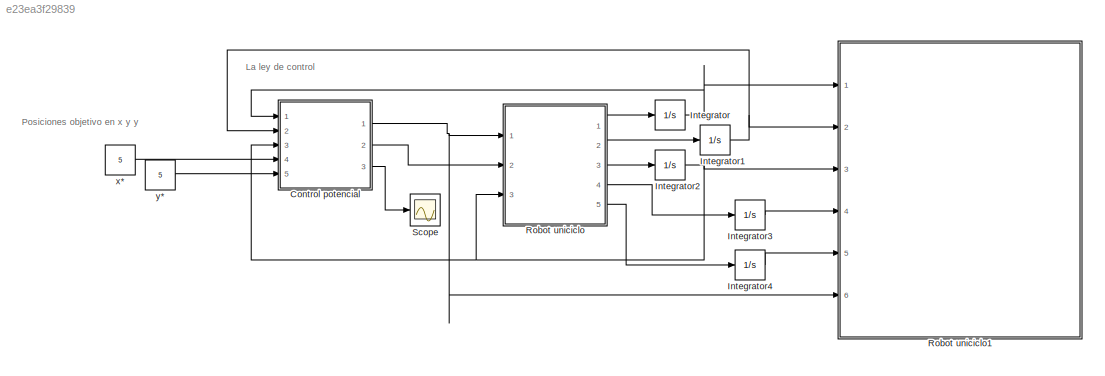
MODEL slx_e23ea3f29839
KIND model
CONFIG AbsTol = auto
CONFIG EnableMultiTasking = off
CONFIG FixedStep = auto
CONFIG MaxStep = auto
CONFIG MinStep = auto
CONFIG RelTol = 1e-3
CONFIG SampleTimeConstraint = Unconstrained
CONFIG Solver = VariableStepAuto
CONFIG SolverName = VariableStepAuto
CONFIG StartTime = 0.0
CONFIG StopTime = 10.0
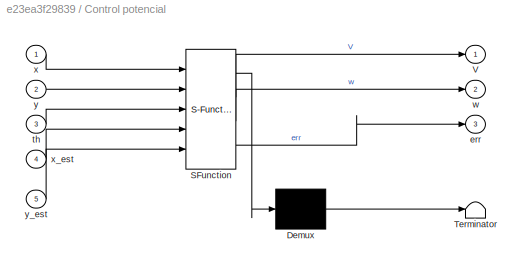
BLOCK [SubSystem] Control potencial
  ErrorFcn = Stateflow.Translate.translate
  PermitHierarchicalResolution = ExplicitOnly
  Ports = [5, 3]
  RequestExecContextInheritance = off
  SFBlockType = MATLAB Function
  TreatAsAtomicUnit = on
BLOCK [Demux] Control potencial/ Demux 
  Outputs = 1
  Ports = [1, 1]
BLOCK [S-Function] Control potencial/ SFunction 
  EnableBusSupport = on
  FunctionName = sf_sfun
  PortCounts = [5 4]
  Ports = [5, 4]
  SFcnIsStateOwnerBlock = off
  SFunctionDeploymentMode = off
  Tag = Stateflow S-Function 1
BLOCK [Terminator] Control potencial/ Terminator 
BLOCK [Outport] Control potencial/V
BLOCK [Outport] Control potencial/err
  Port = 3
BLOCK [Inport] Control potencial/th
  Port = 3
BLOCK [Outport] Control potencial/w
  Port = 2
BLOCK [Inport] Control potencial/x
BLOCK [Inport] Control potencial/x_est
  Port = 4
BLOCK [Inport] Control potencial/y
  Port = 2
BLOCK [Inport] Control potencial/y_est
  Port = 5
BLOCK [Integrator] Integrator
  InitialCondition = -5
  Ports = [1, 1]
BLOCK [Integrator] Integrator1
  InitialCondition = -5
  Ports = [1, 1]
BLOCK [Integrator] Integrator2
  Ports = [1, 1]
BLOCK [Integrator] Integrator3
  Ports = [1, 1]
BLOCK [Integrator] Integrator4
  Ports = [1, 1]
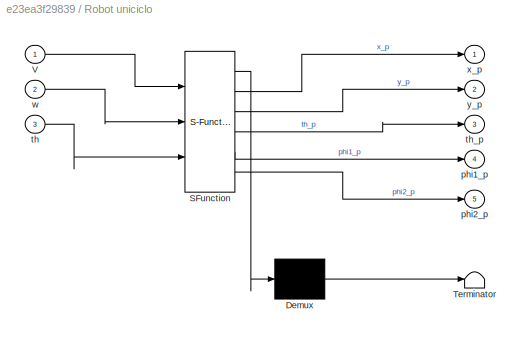
BLOCK [SubSystem] Robot uniciclo
  ErrorFcn = Stateflow.Translate.translate
  PermitHierarchicalResolution = ExplicitOnly
  Ports = [3, 5]
  RequestExecContextInheritance = off
  SFBlockType = MATLAB Function
  TreatAsAtomicUnit = on
BLOCK [Demux] Robot uniciclo/ Demux 
  Outputs = 1
  Ports = [1, 1]
BLOCK [S-Function] Robot uniciclo/ SFunction 
  EnableBusSupport = on
  FunctionName = sf_sfun
  PortCounts = [3 6]
  Ports = [3, 6]
  SFcnIsStateOwnerBlock = off
  SFunctionDeploymentMode = off
  Tag = Stateflow S-Function 2
BLOCK [Terminator] Robot uniciclo/ Terminator 
BLOCK [Inport] Robot uniciclo/V
BLOCK [Outport] Robot uniciclo/phi1_p
  Port = 4
BLOCK [Outport] Robot uniciclo/phi2_p
  Port = 5
BLOCK [Inport] Robot uniciclo/th
  Port = 3
BLOCK [Outport] Robot uniciclo/th_p
  Port = 3
BLOCK [Inport] Robot uniciclo/w
  Port = 2
BLOCK [Outport] Robot uniciclo/x_p
BLOCK [Outport] Robot uniciclo/y_p
  Port = 2
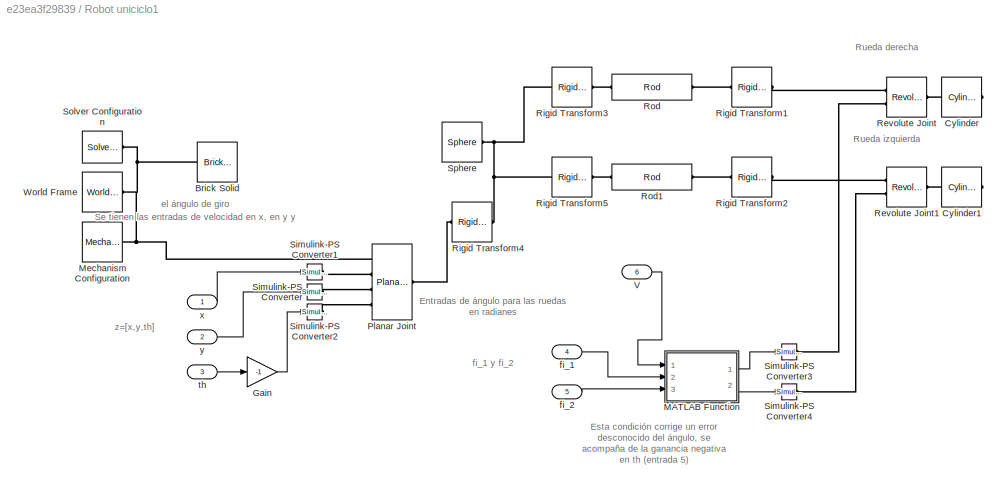
BLOCK [SubSystem] Robot uniciclo1
  Ports = [6]
  RequestExecContextInheritance = off
BLOCK [Reference] Robot uniciclo1/Brick Solid  REF=sm_lib/Body Elements/Brick Solid
  NameLocation = top
  Ports = [0, 0, 0, 0, 0, 0, 1]
  SourceBlock = sm_lib/Body Elements/Brick Solid
  SourceProductBaseCode = MS
  SourceType = Brick Solid
BLOCK [Reference] Robot uniciclo1/Cylinder  REF=Multibody_Parts_Lib/Basic/Cylinder
  Ports = [0, 0, 0, 0, 0, 0, 1]
  SourceBlock = Multibody_Parts_Lib/Basic/Cylinder
  SourceProductName = Simscape Multibody Parts Library
  SourceType = Cylinder with Hole
BLOCK [Reference] Robot uniciclo1/Cylinder1  REF=Multibody_Parts_Lib/Basic/Cylinder
  Ports = [0, 0, 0, 0, 0, 0, 1]
  SourceBlock = Multibody_Parts_Lib/Basic/Cylinder
  SourceProductName = Simscape Multibody Parts Library
  SourceType = Cylinder with Hole
BLOCK [Gain] Robot uniciclo1/Gain
  Gain = -1
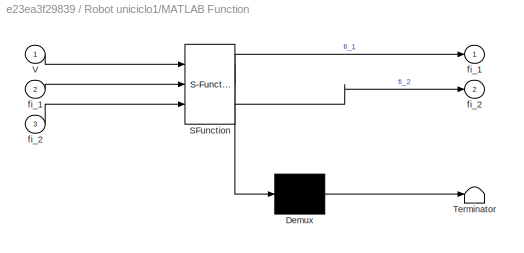
BLOCK [SubSystem] Robot uniciclo1/MATLAB Function
  ErrorFcn = Stateflow.Translate.translate
  PermitHierarchicalResolution = ExplicitOnly
  Ports = [3, 2]
  RequestExecContextInheritance = off
  SFBlockType = MATLAB Function
  TreatAsAtomicUnit = on
BLOCK [Demux] Robot uniciclo1/MATLAB Function/ Demux 
  Outputs = 1
  Ports = [1, 1]
BLOCK [S-Function] Robot uniciclo1/MATLAB Function/ SFunction 
  EnableBusSupport = on
  FunctionName = sf_sfun
  PortCounts = [3 3]
  Ports = [3, 3]
  SFcnIsStateOwnerBlock = off
  SFunctionDeploymentMode = off
  Tag = Stateflow S-Function 3
BLOCK [Terminator] Robot uniciclo1/MATLAB Function/ Terminator 
BLOCK [Inport] Robot uniciclo1/MATLAB Function/V
BLOCK [Outport] Robot uniciclo1/MATLAB Function/fi_1
BLOCK [Inport] Robot uniciclo1/MATLAB Function/fi_1 
  Port = 2
BLOCK [Outport] Robot uniciclo1/MATLAB Function/fi_2
  Port = 2
BLOCK [Inport] Robot uniciclo1/MATLAB Function/fi_2 
  Port = 3
BLOCK [Reference] Robot uniciclo1/Mechanism Configuration  REF=sm_lib/Utilities/Mechanism
Configuration
  Ports = [0, 0, 0, 0, 0, 0, 1]
  SourceBlock = sm_lib/Utilities/Mechanism\nConfiguration
  SourceProductBaseCode = MS
  SourceType = Mechanism\nConfiguration
BLOCK [Reference] Robot uniciclo1/Planar Joint  REF=sm_lib/Joints/Planar Joint
  Ports = [0, 0, 0, 0, 0, 4, 1]
  SourceBlock = sm_lib/Joints/Planar Joint
  SourceProductBaseCode = MS
  SourceType = Planar Joint
BLOCK [Reference] Robot uniciclo1/Revolute Joint  REF=sm_lib/Joints/Revolute Joint
  Ports = [0, 0, 0, 0, 0, 2, 1]
  SourceBlock = sm_lib/Joints/Revolute Joint
  SourceProductBaseCode = MS
  SourceType = Revolute Joint
BLOCK [Reference] Robot uniciclo1/Revolute Joint1  REF=sm_lib/Joints/Revolute Joint
  Ports = [0, 0, 0, 0, 0, 2, 1]
  SourceBlock = sm_lib/Joints/Revolute Joint
  SourceProductBaseCode = MS
  SourceType = Revolute Joint
BLOCK [Reference] Robot uniciclo1/Rigid Transform1  REF=sm_lib/Frames and
Transforms/Rigid
Transform
  Ports = [0, 0, 0, 0, 0, 1, 1]
  SourceBlock = sm_lib/Frames and\nTransforms/Rigid\nTransform
  SourceProductBaseCode = MS
  SourceType = Rigid\nTransform
BLOCK [Reference] Robot uniciclo1/Rigid Transform2  REF=sm_lib/Frames and
Transforms/Rigid
Transform
  Ports = [0, 0, 0, 0, 0, 1, 1]
  SourceBlock = sm_lib/Frames and\nTransforms/Rigid\nTransform
  SourceProductBaseCode = MS
  SourceType = Rigid\nTransform
BLOCK [Reference] Robot uniciclo1/Rigid Transform3  REF=sm_lib/Frames and
Transforms/Rigid
Transform
  Ports = [0, 0, 0, 0, 0, 1, 1]
  SourceBlock = sm_lib/Frames and\nTransforms/Rigid\nTransform
  SourceProductBaseCode = MS
  SourceType = Rigid\nTransform
BLOCK [Reference] Robot uniciclo1/Rigid Transform4  REF=sm_lib/Frames and
Transforms/Rigid
Transform
  Ports = [0, 0, 0, 0, 0, 1, 1]
  SourceBlock = sm_lib/Frames and\nTransforms/Rigid\nTransform
  SourceProductBaseCode = MS
  SourceType = Rigid\nTransform
BLOCK [Reference] Robot uniciclo1/Rigid Transform5  REF=sm_lib/Frames and
Transforms/Rigid
Transform
  Ports = [0, 0, 0, 0, 0, 1, 1]
  SourceBlock = sm_lib/Frames and\nTransforms/Rigid\nTransform
  SourceProductBaseCode = MS
  SourceType = Rigid\nTransform
BLOCK [Reference] Robot uniciclo1/Rod  REF=Multibody_Parts_Lib/Basic/Rod
  Ports = [0, 0, 0, 0, 0, 1, 1]
  SourceBlock = Multibody_Parts_Lib/Basic/Rod
  SourceProductName = Simscape Multibody Parts Library
  SourceType = Rod
BLOCK [Reference] Robot uniciclo1/Rod1  REF=Multibody_Parts_Lib/Basic/Rod
  Ports = [0, 0, 0, 0, 0, 1, 1]
  SourceBlock = Multibody_Parts_Lib/Basic/Rod
  SourceProductName = Simscape Multibody Parts Library
  SourceType = Rod
BLOCK [Reference] Robot uniciclo1/Simulink-PS Converter  REF=nesl_utility/Simulink-PS
Converter
  Ports = [1, 0, 0, 0, 0, 0, 1]
  SourceBlock = nesl_utility/Simulink-PS\nConverter
  SourceProductBaseCode = PW,SS
  SourceType = Simulink-PS\nConverter
BLOCK [Reference] Robot uniciclo1/Simulink-PS Converter1  REF=nesl_utility/Simulink-PS
Converter
  Ports = [1, 0, 0, 0, 0, 0, 1]
  SourceBlock = nesl_utility/Simulink-PS\nConverter
  SourceProductBaseCode = PW,SS
  SourceType = Simulink-PS\nConverter
BLOCK [Reference] Robot uniciclo1/Simulink-PS Converter2  REF=nesl_utility/Simulink-PS
Converter
  Ports = [1, 0, 0, 0, 0, 0, 1]
  SourceBlock = nesl_utility/Simulink-PS\nConverter
  SourceProductBaseCode = PW,SS
  SourceType = Simulink-PS\nConverter
BLOCK [Reference] Robot uniciclo1/Simulink-PS Converter3  REF=nesl_utility/Simulink-PS
Converter
  Ports = [1, 0, 0, 0, 0, 0, 1]
  SourceBlock = nesl_utility/Simulink-PS\nConverter
  SourceProductBaseCode = PW,SS
  SourceType = Simulink-PS\nConverter
BLOCK [Reference] Robot uniciclo1/Simulink-PS Converter4  REF=nesl_utility/Simulink-PS
Converter
  Ports = [1, 0, 0, 0, 0, 0, 1]
  SourceBlock = nesl_utility/Simulink-PS\nConverter
  SourceProductBaseCode = PW,SS
  SourceType = Simulink-PS\nConverter
BLOCK [Reference] Robot uniciclo1/Solver Configuration  REF=nesl_utility/Solver
Configuration
  Ports = [0, 0, 0, 0, 0, 0, 1]
  SourceBlock = nesl_utility/Solver\nConfiguration
  SourceProductBaseCode = PW,SS
  SourceType = Solver\nConfiguration
BLOCK [Reference] Robot uniciclo1/Sphere  REF=Multibody_Parts_Lib/Basic/Sphere
  Ports = [0, 0, 0, 0, 0, 1]
  SourceBlock = Multibody_Parts_Lib/Basic/Sphere
  SourceProductName = Simscape Multibody Parts Library
  SourceType = Sphere
  Tag = CustomStyle
BLOCK [Inport] Robot uniciclo1/V
  Port = 6
BLOCK [Reference] Robot uniciclo1/World Frame  REF=sm_lib/Frames and
Transforms/World Frame
  Ports = [0, 0, 0, 0, 0, 0, 1]
  SourceBlock = sm_lib/Frames and\nTransforms/World Frame
  SourceProductBaseCode = MS
  SourceType = World Frame
BLOCK [Inport] Robot uniciclo1/fi_1
  Port = 4
BLOCK [Inport] Robot uniciclo1/fi_2
  Port = 5
BLOCK [Inport] Robot uniciclo1/th
  Port = 3
BLOCK [Inport] Robot uniciclo1/x
BLOCK [Inport] Robot uniciclo1/y
  Port = 2
BLOCK [Scope] Scope
  Floating = off
  NumInputPorts = 1
  Ports = [1]
  ScopeSpecificationString = Simulink.scopes.TimeScopeBlockCfg('CurrentConfiguration', extmgr.ConfigurationSet(extmgr.Configuration('Core','General UI',true),extmgr.Configuration('Core','Source UI',true),extmgr.Configuration('Sources','WiredSimulink',true),extmgr.Configuration('Visuals','Time Domain',true,'SerializedDisplays',{struct('MinYLimReal','-11.24958','MaxYLimReal','1.24623','YLabelReal','','MinYLimMag','0.00000','Max...<+1429ch>
BLOCK [Constant] x*
  Value = 5
BLOCK [Constant] y*
  Value = 5
ANNOTATION (root): La ley de control
ANNOTATION (root): Posiciones objetivo en x y y
ANNOTATION Robot uniciclo1: Entradas de ángulo para las ruedas en radianes
ANNOTATION Robot uniciclo1: Esta condición corrige un error desconocido del ángulo, se acompaña de la ganancia negativa en th (entrada 5)
ANNOTATION Robot uniciclo1: Rueda derecha
ANNOTATION Robot uniciclo1: Rueda izquierda
ANNOTATION Robot uniciclo1: Se tienen las entradas de velocidad en x, en y y el ángulo de giro
ANNOTATION Robot uniciclo1: fi_1 y fi_2
ANNOTATION Robot uniciclo1: z=[x,y,th]
NET Control potencial:1 -> Robot uniciclo1:6, Robot uniciclo:1
LINE Control potencial:2 -> Robot uniciclo:2
LINE Control potencial:3 -> Scope:1
NET Integrator1:1 -> Control potencial:2, Robot uniciclo1:2
NET Integrator2:1 -> Control potencial:3, Robot uniciclo1:3, Robot uniciclo:3
LINE Integrator3:1 -> Robot uniciclo1:4
LINE Integrator4:1 -> Robot uniciclo1:5
NET Integrator:1 -> Control potencial:1, Robot uniciclo1:1
LINE Robot uniciclo1/Gain:1 -> Robot uniciclo1/Simulink-PS Converter2:1
LINE Robot uniciclo1/MATLAB Function:1 -> Robot uniciclo1/Simulink-PS Converter3:1
LINE Robot uniciclo1/MATLAB Function:2 -> Robot uniciclo1/Simulink-PS Converter4:1
LINE Robot uniciclo1/V:1 -> Robot uniciclo1/MATLAB Function:1
LINE Robot uniciclo1/fi_1:1 -> Robot uniciclo1/MATLAB Function:2
LINE Robot uniciclo1/fi_2:1 -> Robot uniciclo1/MATLAB Function:3
LINE Robot uniciclo1/th:1 -> Robot uniciclo1/Gain:1
LINE Robot uniciclo1/x:1 -> Robot uniciclo1/Simulink-PS Converter1:1
LINE Robot uniciclo1/y:1 -> Robot uniciclo1/Simulink-PS Converter:1
LINE Robot uniciclo:1 -> Integrator:1
LINE Robot uniciclo:2 -> Integrator1:1
LINE Robot uniciclo:3 -> Integrator2:1
LINE Robot uniciclo:4 -> Integrator3:1
LINE Robot uniciclo:5 -> Integrator4:1
LINE x*:1 -> Control potencial:4
LINE y*:1 -> Control potencial:5
PNET net1: Robot uniciclo1/Brick Solid:RConn1 -- Robot uniciclo1/Mechanism Configuration:RConn1 -- Robot uniciclo1/Planar Joint:LConn1 -- Robot uniciclo1/Solver Configuration:RConn1 -- Robot uniciclo1/World Frame:RConn1
PLINE Robot uniciclo1/Cylinder1:RConn1 -- Robot uniciclo1/Revolute Joint1:RConn1
PLINE Robot uniciclo1/Cylinder:RConn1 -- Robot uniciclo1/Revolute Joint:RConn1
PLINE Robot uniciclo1/Planar Joint:LConn2 -- Robot uniciclo1/Simulink-PS Converter1:RConn1
PLINE Robot uniciclo1/Planar Joint:LConn3 -- Robot uniciclo1/Simulink-PS Converter:RConn1
PLINE Robot uniciclo1/Planar Joint:LConn4 -- Robot uniciclo1/Simulink-PS Converter2:RConn1
PLINE Robot uniciclo1/Planar Joint:RConn1 -- Robot uniciclo1/Rigid Transform4:LConn1
PLINE Robot uniciclo1/Revolute Joint1:LConn1 -- Robot uniciclo1/Rigid Transform2:RConn1
PLINE Robot uniciclo1/Revolute Joint1:LConn2 -- Robot uniciclo1/Simulink-PS Converter4:RConn1
PLINE Robot uniciclo1/Revolute Joint:LConn1 -- Robot uniciclo1/Rigid Transform1:RConn1
PLINE Robot uniciclo1/Revolute Joint:LConn2 -- Robot uniciclo1/Simulink-PS Converter3:RConn1
PLINE Robot uniciclo1/Rigid Transform1:LConn1 -- Robot uniciclo1/Rod:RConn1
PLINE Robot uniciclo1/Rigid Transform2:LConn1 -- Robot uniciclo1/Rod1:RConn1
PNET net2: Robot uniciclo1/Rigid Transform3:LConn1 -- Robot uniciclo1/Rigid Transform4:RConn1 -- Robot uniciclo1/Rigid Transform5:LConn1 -- Robot uniciclo1/Sphere:LConn1
PLINE Robot uniciclo1/Rigid Transform3:RConn1 -- Robot uniciclo1/Rod:LConn1
PLINE Robot uniciclo1/Rigid Transform5:RConn1 -- Robot uniciclo1/Rod1:LConn1
note: NET lines group one-source signal fan-out (src -> all destinations, sorted); 1:1 wires keep LINE; PNET lines group multi-terminal physical nets as a canonical sorted terminal list (undirected conserving connections); 2-terminal nets keep the pairwise PLINE form
CHART Control potencial states=1 transitions=1
  STATE_LABEL 'eML_blk_kernel()'
  STATE_LABEL 'SCRIPT:\nfunction [V,w,err] = fcn(x,y,th,x_est,y_est)\n% función de control potencial\n% se declaran las constantes\nL=0.01; % distancia del eje principal al punto alfa en m\n%% Definir la matriz A\nA=[sin(th) L*cos(th);cos(th) -L*sin(th)];\n%% calcular el error\nerr=[x-x_est;y-y_est];\n%% La ley de contro potencial\nk=0.8; % ganancia de control\nU=inv(A)*(-k*err);\nV=U(1);\nw=U(2);\n\n'
CHART Robot uniciclo states=1 transitions=1
  STATE_LABEL 'eML_blk_kernel()'
  STATE_LABEL 'SCRIPT:\nfunction [x_p,y_p,th_p,phi1_p,phi2_p] = fcn(V,w,th)\n% Esta función es el modelo matemático del robot diferencial\n% Se declaran las constantes\nl=0.125; % Distancia del centro a la rueda en m  \nr=0.1; % Radio de la rueda en m\n%% Modelo cinemático de postura\nx_p=V*sin(th);\ny_p=V*cos(th);\nth_p=w;\n%% Modelo cinemático de configuración\nphi1_p=-(1/r)*V-(l/r)*w;\nphi2_p=(1/r)*V-(l/r)*w;\n\n'
CHART Robot uniciclo1/MATLAB Function states=1 transitions=1
  STATE_LABEL 'eML_blk_kernel()'
  STATE_LABEL 'SCRIPT:\nfunction [fi_1,fi_2] = fcn(V,fi_1,fi_2)\nif V==0 \n    fi_1=-fi_1;\n    fi_2=-fi_2;\nend\n'
CHART  states=0 transitions=0
CHART  states=0 transitions=0
CHART  states=0 transitions=0
